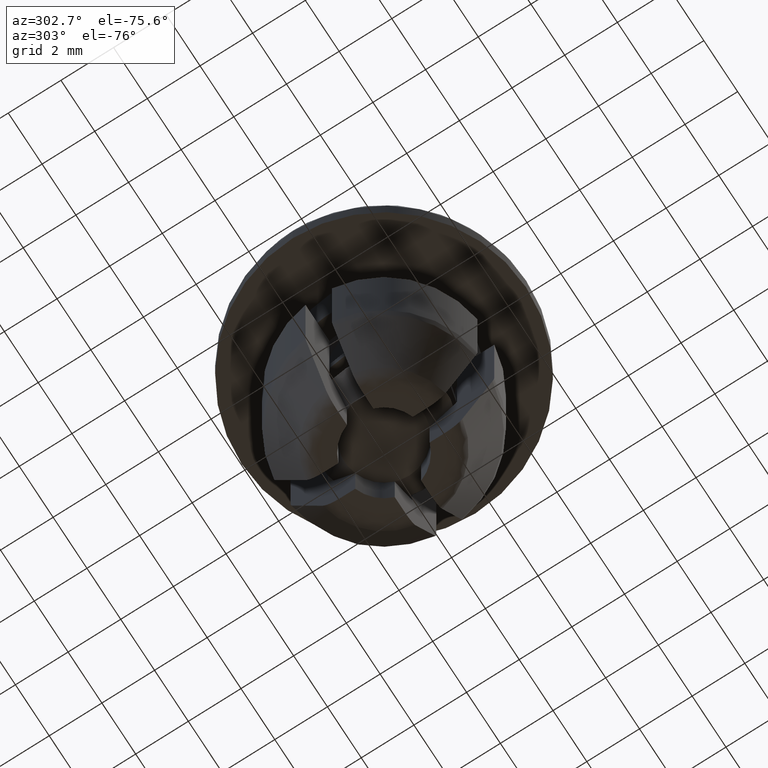
[diagram: clean part render]
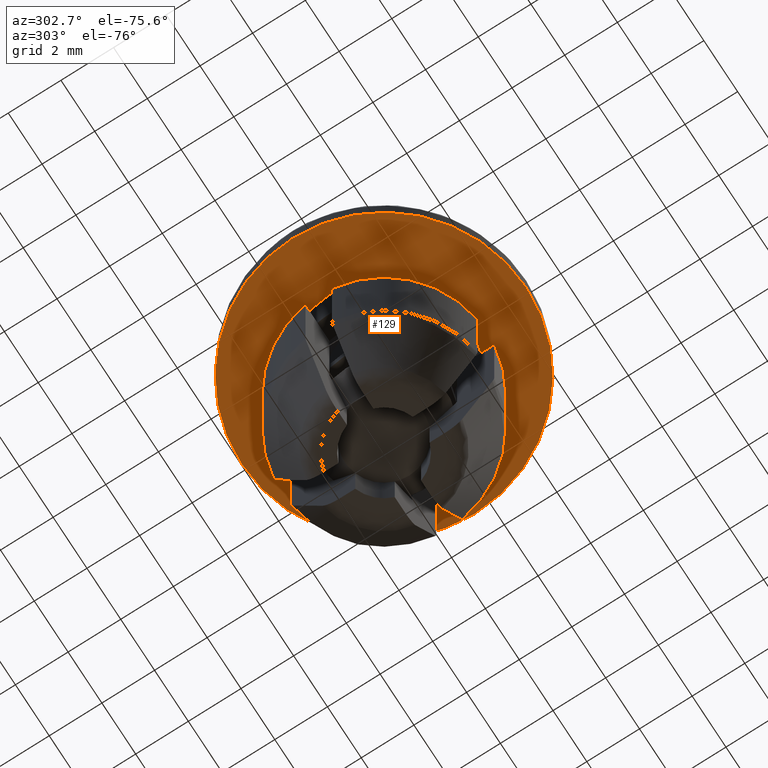
[diagram: same view with one face highlighted and labeled with its STEP entity id]
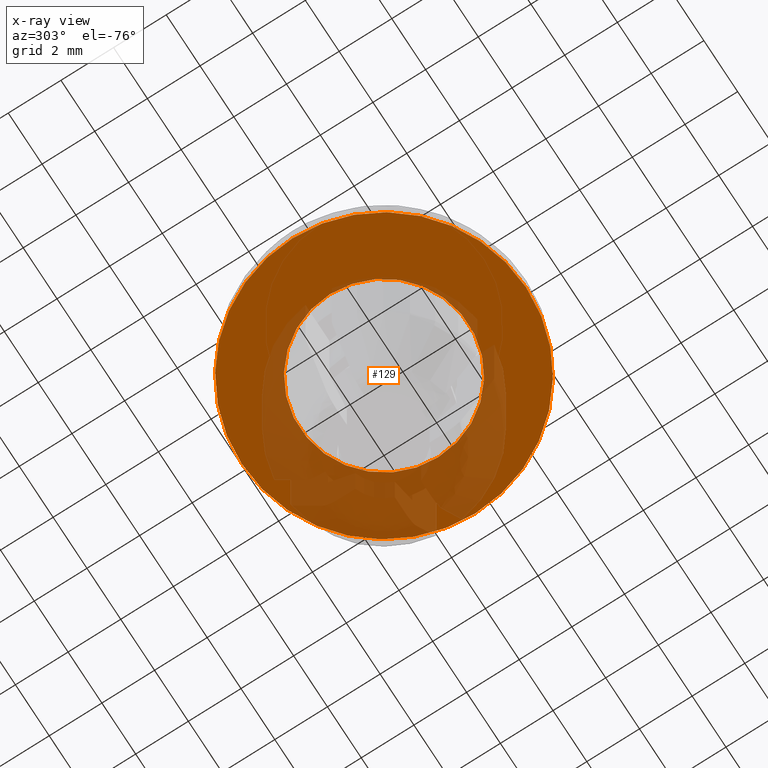
[diagram: x-ray of the same camera — body ghosted, the highlighted face saturated]
A machine part, auxiliary view. The second image highlights one B-rep face of the part: STEP entity #129.
The next image is the same camera in x-ray: the body ghosted, the highlighted face saturated — about 38% of this face is hidden behind the body in this view.
In plain terms, the highlighted planar face has unit normal (0, 0, -1).
Its self-contained STEP definition (entity closure, byte-faithful):
#129=ADVANCED_FACE('',(#363,#364),#362,.T.);
#362=PLANE('',#1094);
#363=FACE_OUTER_BOUND('',#1095,.T.);
#364=FACE_BOUND('',#1096,.T.);
#1091=CARTESIAN_POINT('',(1.24200000000E+01,-1.12236892330E+01,-2.00000000000E+00));
#1092=DIRECTION('',(0.00000000000E+00,0.00000000000E+00,-1.00000000000E+00));
#1093=DIRECTION('',(-1.00000000000E+00,0.00000000000E+00,0.00000000000E+00));
#1094=AXIS2_PLACEMENT_3D('',#1091,#1092,#1093);
#1095=EDGE_LOOP('',(#1648,#1649));
#1096=EDGE_LOOP('',(#1650,#1651));
#1648=ORIENTED_EDGE('',*,*,#2025,.T.);
#1649=ORIENTED_EDGE('',*,*,#2026,.T.);
#1650=ORIENTED_EDGE('',*,*,#2027,.T.);
#1651=ORIENTED_EDGE('',*,*,#2028,.T.);
#2025=EDGE_CURVE('',#2683,#2684,#2685,.T.);
#2026=EDGE_CURVE('',#2684,#2683,#2691,.T.);
#2027=EDGE_CURVE('',#2697,#2698,#2699,.T.);
#2028=EDGE_CURVE('',#2698,#2697,#2705,.T.);
#2683=VERTEX_POINT('',#3805);
#2684=VERTEX_POINT('',#3806);
#2685=CIRCLE('',#3810,5.40000000000E+00);
#2691=CIRCLE('',#3814,5.40000000000E+00);
#2697=VERTEX_POINT('',#3815);
#2698=VERTEX_POINT('',#3816);
#2699=CIRCLE('',#3820,3.20000000000E+00);
#2705=CIRCLE('',#3824,3.20000000000E+00);
#3805=CARTESIAN_POINT('',(-5.40000000000E+00,0.00000000000E+00,-2.00000000000E+00));
#3806=CARTESIAN_POINT('',(5.40000000000E+00,2.96059473233E-16,-2.00000000000E+00));
#3807=CARTESIAN_POINT('',(0.00000000000E+00,0.00000000000E+00,-2.00000000000E+00));
#3808=DIRECTION('',(-0.00000000000E+00,0.00000000000E+00,-1.00000000000E+00));
#3809=DIRECTION('',(-1.00000000000E+00,-1.22460635382E-16,0.00000000000E+00));
#3810=AXIS2_PLACEMENT_3D('',#3807,#3808,#3809);
#3811=CARTESIAN_POINT('',(0.00000000000E+00,0.00000000000E+00,-2.00000000000E+00));
#3812=DIRECTION('',(-0.00000000000E+00,0.00000000000E+00,-1.00000000000E+00));
#3813=DIRECTION('',(-1.00000000000E+00,-1.22460635382E-16,0.00000000000E+00));
#3814=AXIS2_PLACEMENT_3D('',#3811,#3812,#3813);
#3815=CARTESIAN_POINT('',(-3.20000000000E+00,0.00000000000E+00,-2.00000000000E+00));
#3816=CARTESIAN_POINT('',(3.20000000000E+00,4.44089209850E-16,-2.00000000000E+00));
#3817=CARTESIAN_POINT('',(-1.97215226305E-31,0.00000000000E+00,-2.00000000000E+00));
#3818=DIRECTION('',(0.00000000000E+00,0.00000000000E+00,1.00000000000E+00));
#3819=DIRECTION('',(-1.00000000000E+00,-1.22460635382E-16,0.00000000000E+00));
#3820=AXIS2_PLACEMENT_3D('',#3817,#3818,#3819);
#3821=CARTESIAN_POINT('',(-1.97215226305E-31,0.00000000000E+00,-2.00000000000E+00));
#3822=DIRECTION('',(0.00000000000E+00,0.00000000000E+00,1.00000000000E+00));
#3823=DIRECTION('',(-1.00000000000E+00,-1.22460635382E-16,0.00000000000E+00));
#3824=AXIS2_PLACEMENT_3D('',#3821,#3822,#3823);